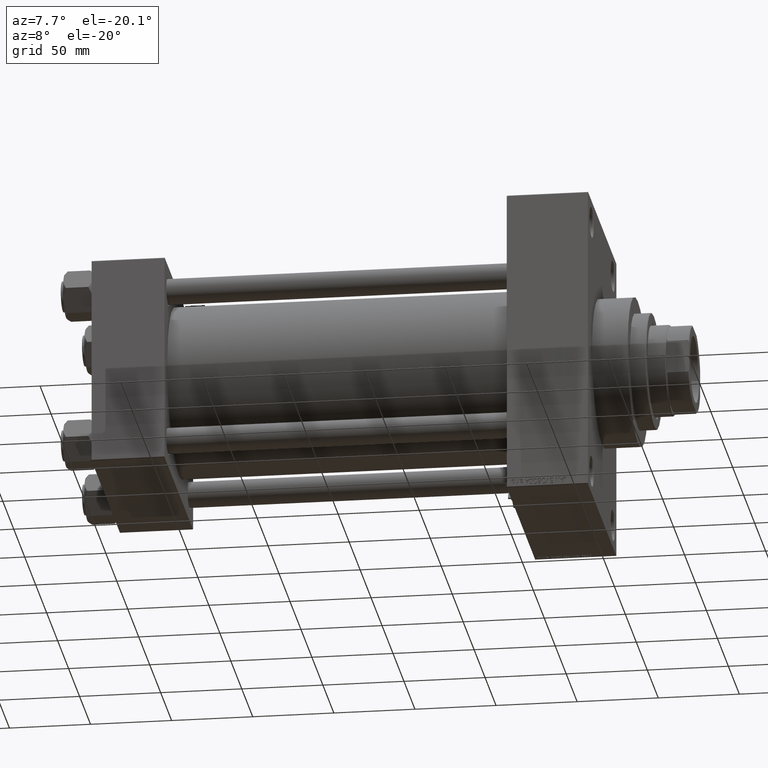
[diagram: clean part render]
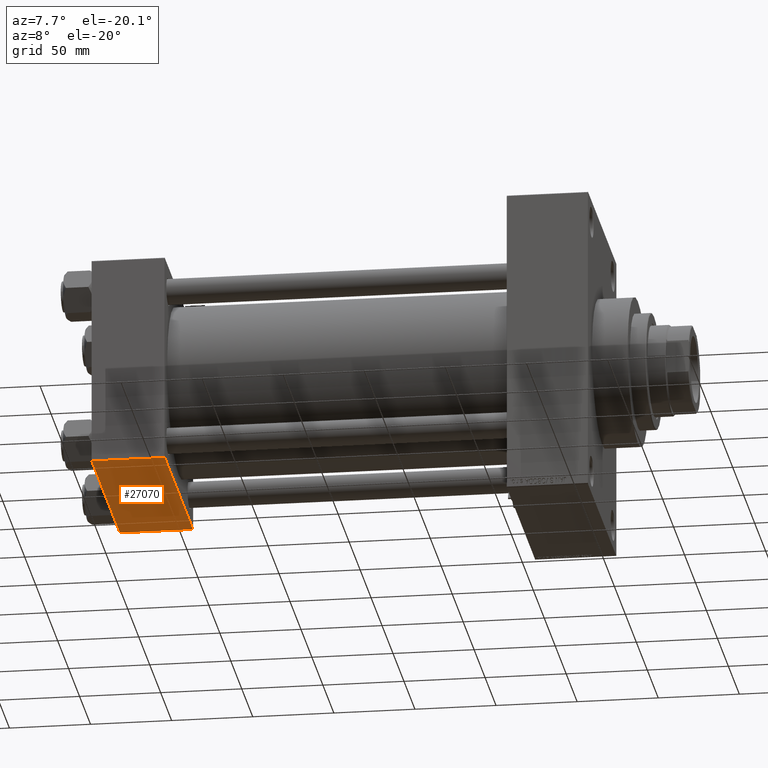
[diagram: same view with one face highlighted and labeled with its STEP entity id]
A machine part, auxiliary view. The second image highlights one B-rep face of the part: STEP entity #27070.
In plain terms, the highlighted planar face has unit normal (0, 0, -1).
Its self-contained STEP definition (entity closure, byte-faithful):
#355 = ORIENTED_EDGE ( 'NONE', *, *, #24083, .T. ) ;
#2681 = DIRECTION ( 'NONE',  ( 0.000000000000000000, -1.000000000000000000, -1.067522139062650425E-16 ) ) ;
#2911 = LINE ( 'NONE', #17987, #13901 ) ;
#3453 = VERTEX_POINT ( 'NONE', #25431 ) ;
#5499 = EDGE_CURVE ( 'NONE', #32985, #34469, #30069, .T. ) ;
#5917 = DIRECTION ( 'NONE',  ( 0.000000000000000000, -1.000000000000000000, -1.067522139062650425E-16 ) ) ;
#8058 = CARTESIAN_POINT ( 'NONE',  ( 45.00000000000000000, -64.49999999999994316, -65.00000000000000000 ) ) ;
#13104 = DIRECTION ( 'NONE',  ( -1.000000000000000000, 0.000000000000000000, 0.000000000000000000 ) ) ;
#13901 = VECTOR ( 'NONE', #18477, 1000.000000000000000 ) ;
#14194 = CARTESIAN_POINT ( 'NONE',  ( 45.00000000000000000, 64.49999999999997158, -64.99999999999998579 ) ) ;
#14395 = ORIENTED_EDGE ( 'NONE', *, *, #39687, .T. ) ;
#16501 = VECTOR ( 'NONE', #2681, 1000.000000000000000 ) ;
#17987 = CARTESIAN_POINT ( 'NONE',  ( 45.00000000000000000, 64.49999999999997158, -64.99999999999998579 ) ) ;
#18477 = DIRECTION ( 'NONE',  ( 1.000000000000000000, 0.000000000000000000, 0.000000000000000000 ) ) ;
#20079 = VECTOR ( 'NONE', #5917, 1000.000000000000000 ) ;
#20918 = VERTEX_POINT ( 'NONE', #25091 ) ;
#21161 = ORIENTED_EDGE ( 'NONE', *, *, #32679, .F. ) ;
#22194 = CARTESIAN_POINT ( 'NONE',  ( 45.00000000000000000, 65.00000000000000000, -64.99999999999998579 ) ) ;
#23337 = ORIENTED_EDGE ( 'NONE', *, *, #5499, .T. ) ;
#24083 = EDGE_CURVE ( 'NONE', #34469, #20918, #28156, .T. ) ;
#25091 = CARTESIAN_POINT ( 'NONE',  ( 0.000000000000000000, -64.49999999999994316, -65.00000000000000000 ) ) ;
#25431 = CARTESIAN_POINT ( 'NONE',  ( 0.000000000000000000, 64.49999999999997158, -64.99999999999998579 ) ) ;
#27070 = ADVANCED_FACE ( 'NONE', ( #36129 ), #39826, .T. ) ;
#28156 = LINE ( 'NONE', #35059, #36731 ) ;
#28716 = DIRECTION ( 'NONE',  ( 0.000000000000000000, 1.000000000000000000, 1.067522139062650548E-16 ) ) ;
#28965 = DIRECTION ( 'NONE',  ( 0.000000000000000000, 1.067522139062650548E-16, -1.000000000000000000 ) ) ;
#29612 = AXIS2_PLACEMENT_3D ( 'NONE', #47262, #28965, #28716 ) ;
#30069 = LINE ( 'NONE', #22194, #16501 ) ;
#32679 = EDGE_CURVE ( 'NONE', #3453, #20918, #42963, .T. ) ;
#32985 = VERTEX_POINT ( 'NONE', #14194 ) ;
#34469 = VERTEX_POINT ( 'NONE', #8058 ) ;
#35059 = CARTESIAN_POINT ( 'NONE',  ( 0.000000000000000000, -64.49999999999994316, -65.00000000000000000 ) ) ;
#35544 = CARTESIAN_POINT ( 'NONE',  ( 0.000000000000000000, 65.00000000000000000, -64.99999999999998579 ) ) ;
#36129 = FACE_OUTER_BOUND ( 'NONE', #42707, .T. ) ;
#36731 = VECTOR ( 'NONE', #13104, 1000.000000000000000 ) ;
#39687 = EDGE_CURVE ( 'NONE', #3453, #32985, #2911, .T. ) ;
#39826 = PLANE ( 'NONE',  #29612 ) ;
#42707 = EDGE_LOOP ( 'NONE', ( #21161, #14395, #23337, #355 ) ) ;
#42963 = LINE ( 'NONE', #35544, #20079 ) ;
#47262 = CARTESIAN_POINT ( 'NONE',  ( 45.00000000000000000, 65.00000000000000000, -64.99999999999998579 ) ) ;